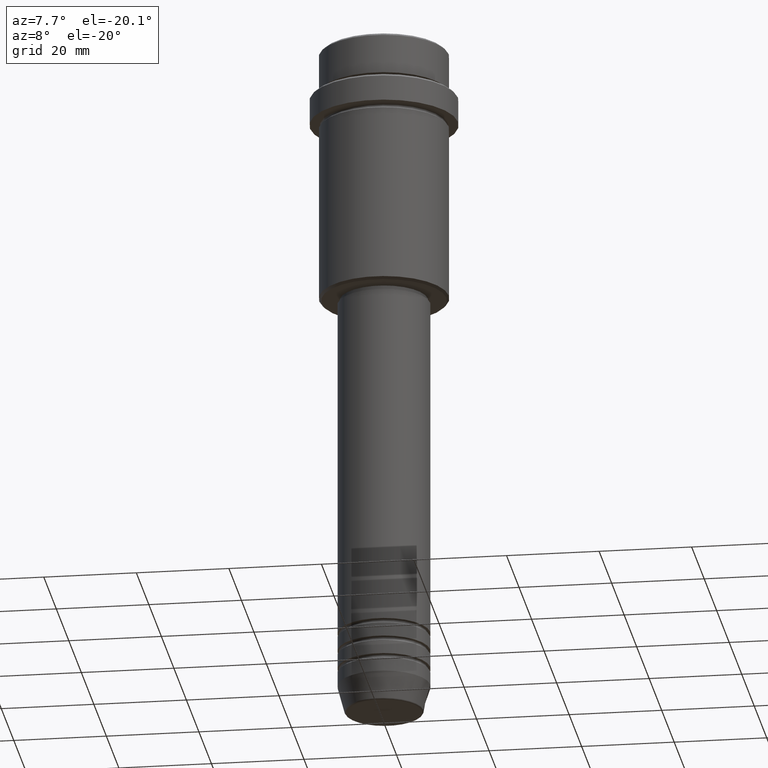
[diagram: clean part render]
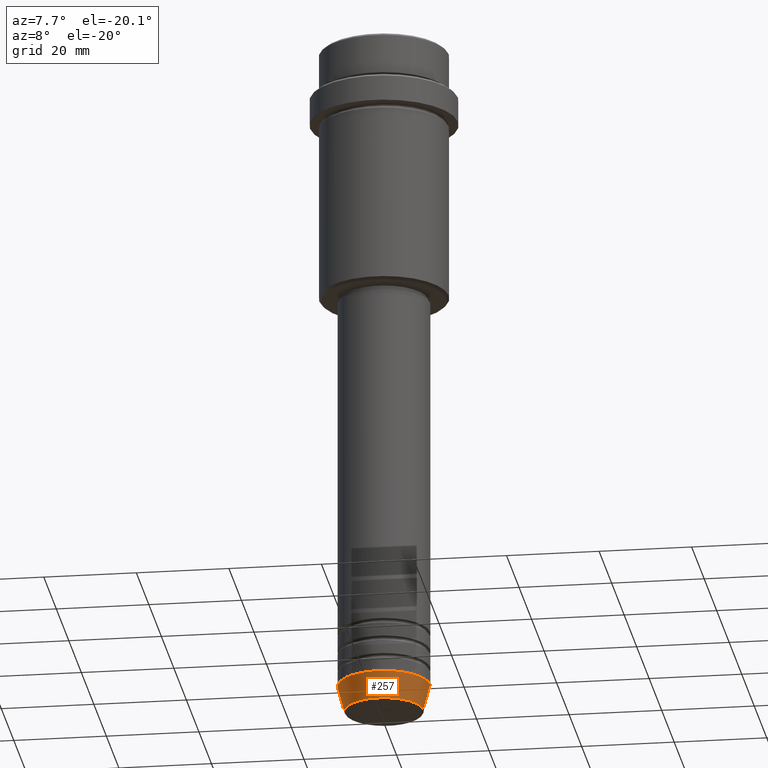
[diagram: same view with one face highlighted and labeled with its STEP entity id]
A machine part, auxiliary view. The second image highlights one B-rep face of the part: STEP entity #257.
In plain terms, the highlighted conical surface has half-angle 15 deg.
Its self-contained STEP definition (entity closure, byte-faithful):
#70 = CARTESIAN_POINT ( 'NONE',  ( 0.000000000000000000, 0.000000000000000000, -149.6294095225512990 ) ) ;
#113 = DIRECTION ( 'NONE',  ( -0.2588190451025211281, 3.169619151431769872E-17, 0.9659258262890680902 ) ) ;
#156 = VECTOR ( 'NONE', #372, 1000.000000000000114 ) ;
#162 = VERTEX_POINT ( 'NONE', #207 ) ;
#207 = CARTESIAN_POINT ( 'NONE',  ( 8.491604264568309191, 0.000000000000000000, -149.6294095225512990 ) ) ;
#228 = CARTESIAN_POINT ( 'NONE',  ( 0.000000000000000000, 0.000000000000000000, -144.0000000000000284 ) ) ;
#239 = CARTESIAN_POINT ( 'NONE',  ( 10.00000000000000000, 0.000000000000000000, -144.0000000000000284 ) ) ;
#257 = ADVANCED_FACE ( 'NONE', ( #462 ), #1350, .T. ) ;
#277 = EDGE_CURVE ( 'NONE', #162, #1003, #1215, .T. ) ;
#369 = ORIENTED_EDGE ( 'NONE', *, *, #1261, .F. ) ;
#372 = DIRECTION ( 'NONE',  ( 0.2588190451025211281, 0.000000000000000000, 0.9659258262890680902 ) ) ;
#390 = DIRECTION ( 'NONE',  ( -0.000000000000000000, -0.000000000000000000, 1.000000000000000000 ) ) ;
#462 = FACE_OUTER_BOUND ( 'NONE', #791, .T. ) ;
#510 = CARTESIAN_POINT ( 'NONE',  ( 0.000000000000000000, 0.000000000000000000, -144.0000000000000284 ) ) ;
#577 = CARTESIAN_POINT ( 'NONE',  ( 10.00000000000000000, 0.000000000000000000, -144.0000000000000284 ) ) ;
#597 = AXIS2_PLACEMENT_3D ( 'NONE', #70, #390, #706 ) ;
#673 = LINE ( 'NONE', #1091, #927 ) ;
#691 = AXIS2_PLACEMENT_3D ( 'NONE', #510, #1165, #957 ) ;
#706 = DIRECTION ( 'NONE',  ( 1.000000000000000000, 0.000000000000000000, 0.000000000000000000 ) ) ;
#711 = CIRCLE ( 'NONE', #597, 8.491604264568309191 ) ;
#791 = EDGE_LOOP ( 'NONE', ( #1412, #1062, #1051, #369 ) ) ;
#870 = CARTESIAN_POINT ( 'NONE',  ( -10.00000000000000000, 1.224646799147353256E-15, -144.0000000000000284 ) ) ;
#881 = AXIS2_PLACEMENT_3D ( 'NONE', #228, #1013, #986 ) ;
#927 = VECTOR ( 'NONE', #113, 1000.000000000000114 ) ;
#952 = CIRCLE ( 'NONE', #691, 10.00000000000000000 ) ;
#957 = DIRECTION ( 'NONE',  ( 1.000000000000000000, 0.000000000000000000, 0.000000000000000000 ) ) ;
#986 = DIRECTION ( 'NONE',  ( 1.000000000000000000, 0.000000000000000000, 0.000000000000000000 ) ) ;
#1003 = VERTEX_POINT ( 'NONE', #577 ) ;
#1012 = EDGE_CURVE ( 'NONE', #1114, #162, #711, .T. ) ;
#1013 = DIRECTION ( 'NONE',  ( -0.000000000000000000, -0.000000000000000000, 1.000000000000000000 ) ) ;
#1051 = ORIENTED_EDGE ( 'NONE', *, *, #277, .T. ) ;
#1062 = ORIENTED_EDGE ( 'NONE', *, *, #1012, .T. ) ;
#1091 = CARTESIAN_POINT ( 'NONE',  ( -10.00000000000000000, 1.224646799147353256E-15, -144.0000000000000284 ) ) ;
#1114 = VERTEX_POINT ( 'NONE', #1194 ) ;
#1153 = VERTEX_POINT ( 'NONE', #870 ) ;
#1165 = DIRECTION ( 'NONE',  ( -0.000000000000000000, -0.000000000000000000, 1.000000000000000000 ) ) ;
#1172 = EDGE_CURVE ( 'NONE', #1114, #1153, #673, .T. ) ;
#1194 = CARTESIAN_POINT ( 'NONE',  ( -8.491604264568309191, 1.132284198685156387E-15, -149.6294095225512990 ) ) ;
#1215 = LINE ( 'NONE', #239, #156 ) ;
#1261 = EDGE_CURVE ( 'NONE', #1153, #1003, #952, .T. ) ;
#1350 = CONICAL_SURFACE ( 'NONE', #881, 10.00000000000000000, 0.2617993877991498519 ) ;
#1412 = ORIENTED_EDGE ( 'NONE', *, *, #1172, .F. ) ;